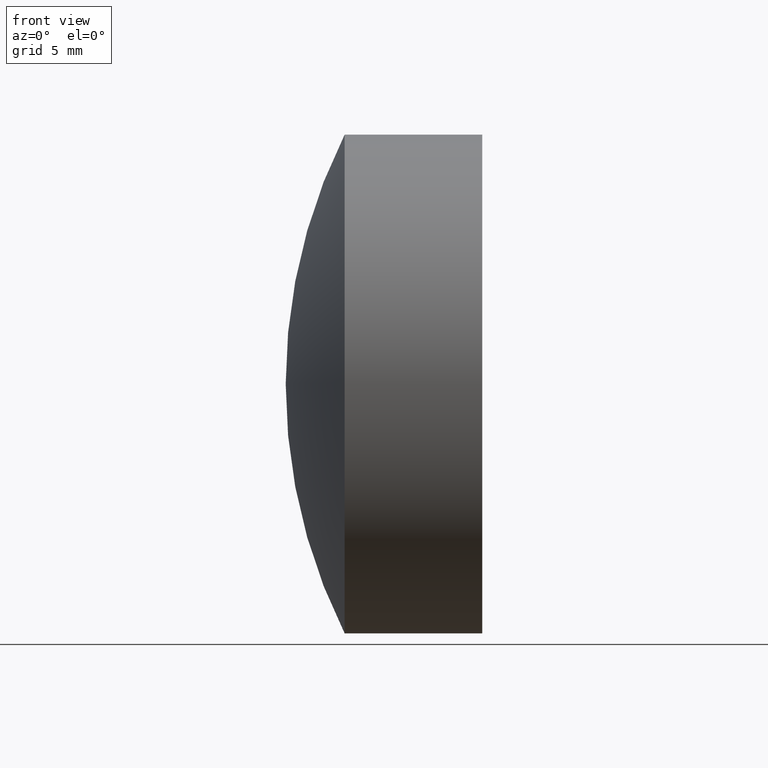
[diagram: clean part render]
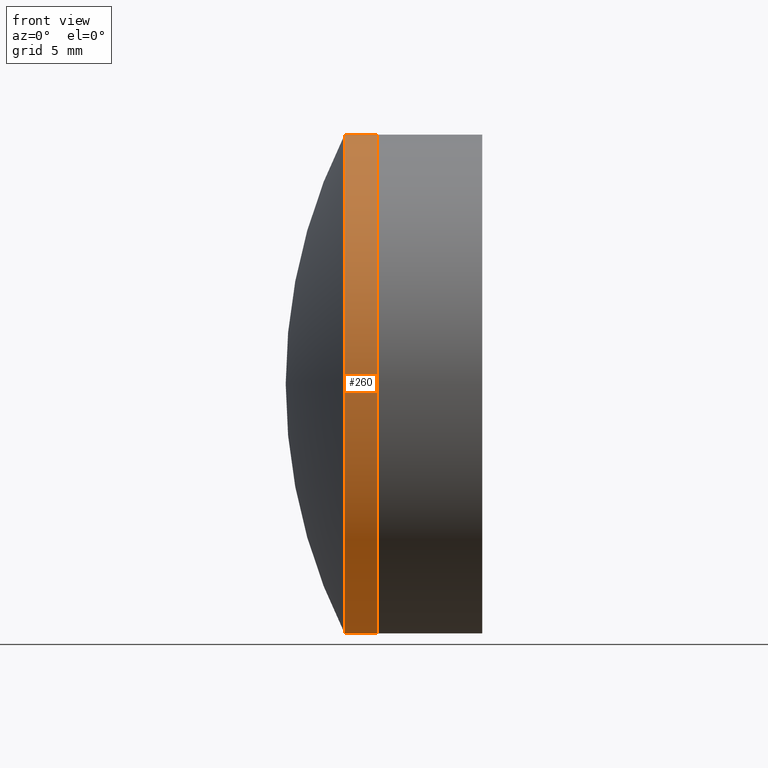
[diagram: same view with one face highlighted and labeled with its STEP entity id]
A machine part, front view. The second image highlights one B-rep face of the part: STEP entity #260.
In plain terms, the highlighted cylindrical surface (partial cylindrical patch) has radius 15 mm, axis along (-1, -0, -0).
Its self-contained STEP definition (entity closure, byte-faithful):
#11 = AXIS2_PLACEMENT_3D ( 'NONE', #289, #120, #309 ) ;
#22 = AXIS2_PLACEMENT_3D ( 'NONE', #168, #313, #141 ) ;
#26 = CARTESIAN_POINT ( 'NONE',  ( 98.43075223754873100, 1.836970198721029600E-015, -15.00000000000000500 ) ) ;
#56 = EDGE_CURVE ( 'NONE', #250, #59, #269, .T. ) ;
#59 = VERTEX_POINT ( 'NONE', #26 ) ;
#68 = DIRECTION ( 'NONE',  ( -1.000000000000000000, -0.0000000000000000000, -0.0000000000000000000 ) ) ;
#75 = AXIS2_PLACEMENT_3D ( 'NONE', #116, #68, #330 ) ;
#103 = EDGE_LOOP ( 'NONE', ( #310, #337, #210, #227 ) ) ;
#116 = CARTESIAN_POINT ( 'NONE',  ( 98.43075223754873100, 0.0000000000000000000, 0.0000000000000000000 ) ) ;
#120 = DIRECTION ( 'NONE',  ( -1.000000000000000000, -0.0000000000000000000, -0.0000000000000000000 ) ) ;
#123 = VECTOR ( 'NONE', #138, 1000.000000000000000 ) ;
#138 = DIRECTION ( 'NONE',  ( -1.000000000000000000, -0.0000000000000000000, -0.0000000000000000000 ) ) ;
#141 = DIRECTION ( 'NONE',  ( 0.0000000000000000000, 0.0000000000000000000, 1.000000000000000000 ) ) ;
#162 = VERTEX_POINT ( 'NONE', #306 ) ;
#165 = CARTESIAN_POINT ( 'NONE',  ( -0.8160621761658039000, 1.836970198721029200E-015, -14.99999999999999600 ) ) ;
#168 = CARTESIAN_POINT ( 'NONE',  ( 100.3989811747571700, 0.0000000000000000000, 0.0000000000000000000 ) ) ;
#176 = VERTEX_POINT ( 'NONE', #315 ) ;
#189 = CIRCLE ( 'NONE', #75, 14.99999999999999600 ) ;
#196 = VECTOR ( 'NONE', #208, 1000.000000000000000 ) ;
#202 = CARTESIAN_POINT ( 'NONE',  ( 100.3989811747571700, 1.836970198721029600E-015, -15.00000000000000000 ) ) ;
#208 = DIRECTION ( 'NONE',  ( -1.000000000000000000, -0.0000000000000000000, -0.0000000000000000000 ) ) ;
#210 = ORIENTED_EDGE ( 'NONE', *, *, #222, .T. ) ;
#215 = EDGE_CURVE ( 'NONE', #59, #162, #189, .T. ) ;
#222 = EDGE_CURVE ( 'NONE', #176, #162, #248, .T. ) ;
#227 = ORIENTED_EDGE ( 'NONE', *, *, #215, .F. ) ;
#233 = CARTESIAN_POINT ( 'NONE',  ( -0.8160621761658039000, 0.0000000000000000000, 14.99999999999999600 ) ) ;
#248 = LINE ( 'NONE', #233, #196 ) ;
#250 = VERTEX_POINT ( 'NONE', #202 ) ;
#255 = CYLINDRICAL_SURFACE ( 'NONE', #11, 14.99999999999999600 ) ;
#260 = ADVANCED_FACE ( 'NONE', ( #280 ), #255, .T. ) ;
#269 = LINE ( 'NONE', #165, #123 ) ;
#280 = FACE_OUTER_BOUND ( 'NONE', #103, .T. ) ;
#289 = CARTESIAN_POINT ( 'NONE',  ( -0.8160621761658039000, 0.0000000000000000000, 0.0000000000000000000 ) ) ;
#291 = EDGE_CURVE ( 'NONE', #250, #176, #324, .T. ) ;
#306 = CARTESIAN_POINT ( 'NONE',  ( 98.43075223754873100, 0.0000000000000000000, 15.00000000000000200 ) ) ;
#309 = DIRECTION ( 'NONE',  ( 0.0000000000000000000, 0.0000000000000000000, 1.000000000000000000 ) ) ;
#310 = ORIENTED_EDGE ( 'NONE', *, *, #56, .F. ) ;
#313 = DIRECTION ( 'NONE',  ( -1.000000000000000000, -0.0000000000000000000, -0.0000000000000000000 ) ) ;
#315 = CARTESIAN_POINT ( 'NONE',  ( 100.3989811747571700, 0.0000000000000000000, 14.99999999999999800 ) ) ;
#324 = CIRCLE ( 'NONE', #22, 14.99999999999999800 ) ;
#330 = DIRECTION ( 'NONE',  ( 0.0000000000000000000, 0.0000000000000000000, 1.000000000000000000 ) ) ;
#337 = ORIENTED_EDGE ( 'NONE', *, *, #291, .T. ) ;